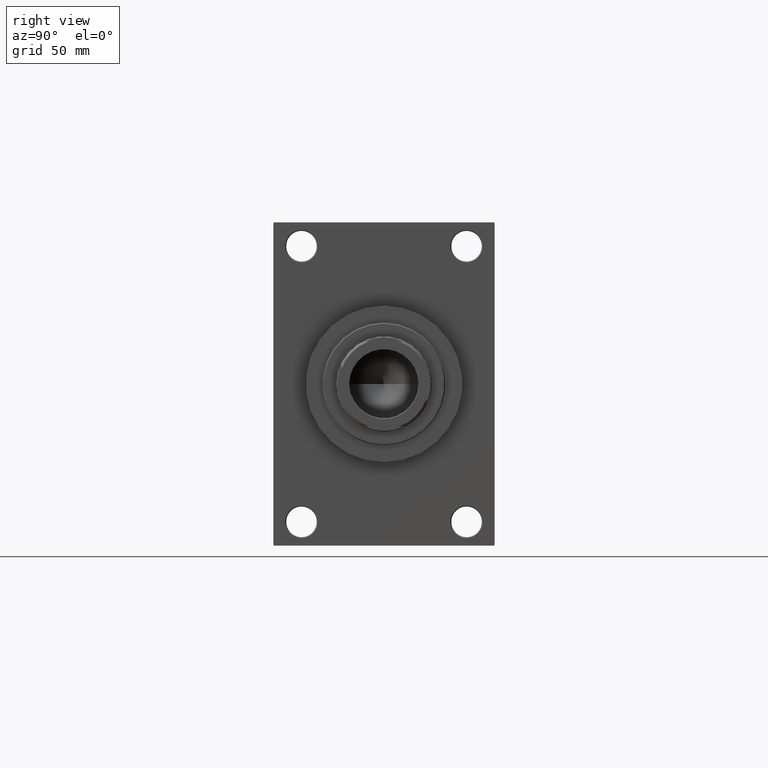
[diagram: clean part render]
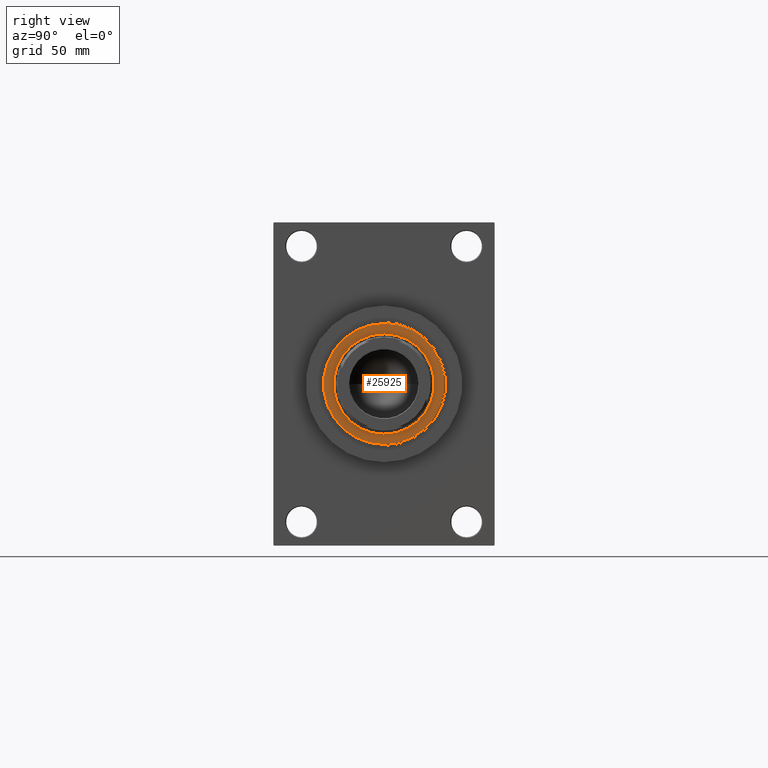
[diagram: same view with one face highlighted and labeled with its STEP entity id]
A machine part, right view. The second image highlights one B-rep face of the part: STEP entity #25925.
In plain terms, the highlighted planar face has unit normal (1, -0, -0).
Its self-contained STEP definition (entity closure, byte-faithful):
#514 = CARTESIAN_POINT ( 'NONE',  ( 0.000000000000000000, 0.000000000000000000, 53.26000000000000512 ) ) ;
#704 = FACE_OUTER_BOUND ( 'NONE', #6481, .T. ) ;
#1024 = VERTEX_POINT ( 'NONE', #40210 ) ;
#1464 = VERTEX_POINT ( 'NONE', #41346 ) ;
#2202 = CARTESIAN_POINT ( 'NONE',  ( -29.50000000000000355, 3.612708057484692393E-15, 53.26000000000000512 ) ) ;
#2410 = EDGE_LOOP ( 'NONE', ( #29614, #40165 ) ) ;
#4027 = DIRECTION ( 'NONE',  ( 0.000000000000000000, 0.000000000000000000, 1.000000000000000000 ) ) ;
#6481 = EDGE_LOOP ( 'NONE', ( #19645, #41373 ) ) ;
#7309 = DIRECTION ( 'NONE',  ( 1.000000000000000000, 0.000000000000000000, 0.000000000000000000 ) ) ;
#7406 = CIRCLE ( 'NONE', #44283, 35.50000000000001421 ) ;
#7958 = PLANE ( 'NONE',  #25158 ) ;
#9220 = CARTESIAN_POINT ( 'NONE',  ( 0.000000000000000000, 0.000000000000000000, 53.26000000000000512 ) ) ;
#13302 = DIRECTION ( 'NONE',  ( 0.000000000000000000, 0.000000000000000000, 1.000000000000000000 ) ) ;
#13480 = AXIS2_PLACEMENT_3D ( 'NONE', #514, #40600, #7309 ) ;
#15831 = CARTESIAN_POINT ( 'NONE',  ( 0.000000000000000000, 0.000000000000000000, 53.26000000000000512 ) ) ;
#18495 = EDGE_CURVE ( 'NONE', #1024, #20337, #32717, .T. ) ;
#19645 = ORIENTED_EDGE ( 'NONE', *, *, #21075, .T. ) ;
#20337 = VERTEX_POINT ( 'NONE', #45050 ) ;
#21075 = EDGE_CURVE ( 'NONE', #20337, #1024, #7406, .T. ) ;
#22459 = EDGE_CURVE ( 'NONE', #1464, #32099, #25016, .T. ) ;
#23187 = CIRCLE ( 'NONE', #27835, 29.50000000000000355 ) ;
#25016 = CIRCLE ( 'NONE', #13480, 29.50000000000000355 ) ;
#25158 = AXIS2_PLACEMENT_3D ( 'NONE', #44403, #30399, #26054 ) ;
#25925 = ADVANCED_FACE ( 'NONE', ( #29677, #704 ), #7958, .T. ) ;
#26054 = DIRECTION ( 'NONE',  ( 1.000000000000000000, 0.000000000000000000, -0.000000000000000000 ) ) ;
#26216 = DIRECTION ( 'NONE',  ( 1.000000000000000000, 0.000000000000000000, 0.000000000000000000 ) ) ;
#27835 = AXIS2_PLACEMENT_3D ( 'NONE', #15831, #4027, #26216 ) ;
#28371 = CARTESIAN_POINT ( 'NONE',  ( 0.000000000000000000, 0.000000000000000000, 53.26000000000000512 ) ) ;
#28602 = DIRECTION ( 'NONE',  ( 1.000000000000000000, 0.000000000000000000, 0.000000000000000000 ) ) ;
#29614 = ORIENTED_EDGE ( 'NONE', *, *, #22459, .F. ) ;
#29677 = FACE_BOUND ( 'NONE', #2410, .T. ) ;
#30399 = DIRECTION ( 'NONE',  ( 0.000000000000000000, 0.000000000000000000, 1.000000000000000000 ) ) ;
#32099 = VERTEX_POINT ( 'NONE', #2202 ) ;
#32717 = CIRCLE ( 'NONE', #38878, 35.50000000000001421 ) ;
#35501 = DIRECTION ( 'NONE',  ( 1.000000000000000000, 0.000000000000000000, 0.000000000000000000 ) ) ;
#38878 = AXIS2_PLACEMENT_3D ( 'NONE', #9220, #13302, #35501 ) ;
#39467 = DIRECTION ( 'NONE',  ( 0.000000000000000000, 0.000000000000000000, 1.000000000000000000 ) ) ;
#39880 = EDGE_CURVE ( 'NONE', #32099, #1464, #23187, .T. ) ;
#40165 = ORIENTED_EDGE ( 'NONE', *, *, #39880, .F. ) ;
#40210 = CARTESIAN_POINT ( 'NONE',  ( 35.50000000000001421, 4.378112306951788646E-15, 53.26000000000000512 ) ) ;
#40600 = DIRECTION ( 'NONE',  ( 0.000000000000000000, 0.000000000000000000, 1.000000000000000000 ) ) ;
#41346 = CARTESIAN_POINT ( 'NONE',  ( 29.50000000000000355, 0.000000000000000000, 53.26000000000000512 ) ) ;
#41373 = ORIENTED_EDGE ( 'NONE', *, *, #18495, .T. ) ;
#44283 = AXIS2_PLACEMENT_3D ( 'NONE', #28371, #39467, #28602 ) ;
#44403 = CARTESIAN_POINT ( 'NONE',  ( 0.000000000000000000, 0.000000000000000000, 53.26000000000000512 ) ) ;
#45050 = CARTESIAN_POINT ( 'NONE',  ( -35.50000000000001421, 0.000000000000000000, 53.26000000000000512 ) ) ;